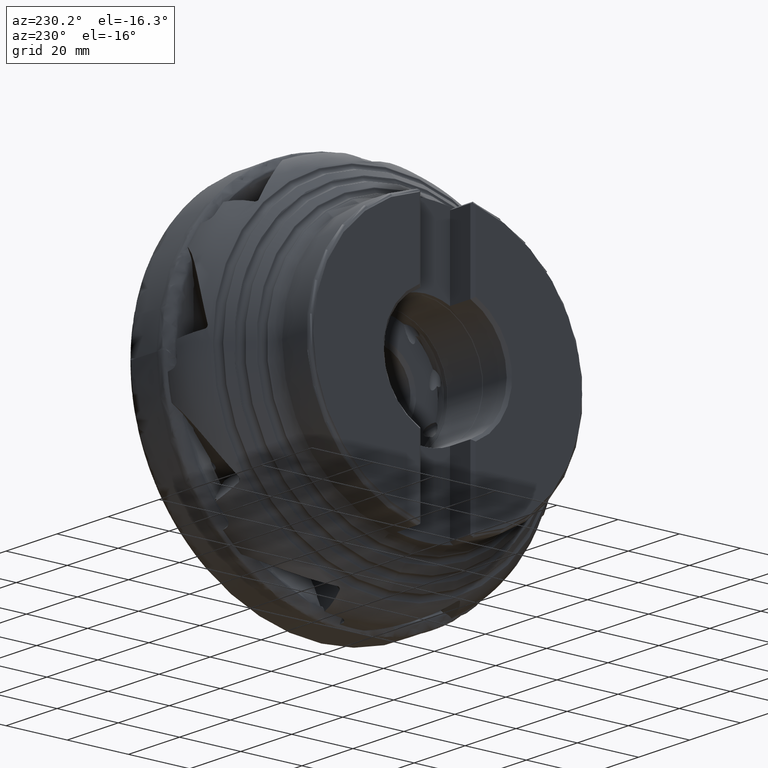
[diagram: clean part render]
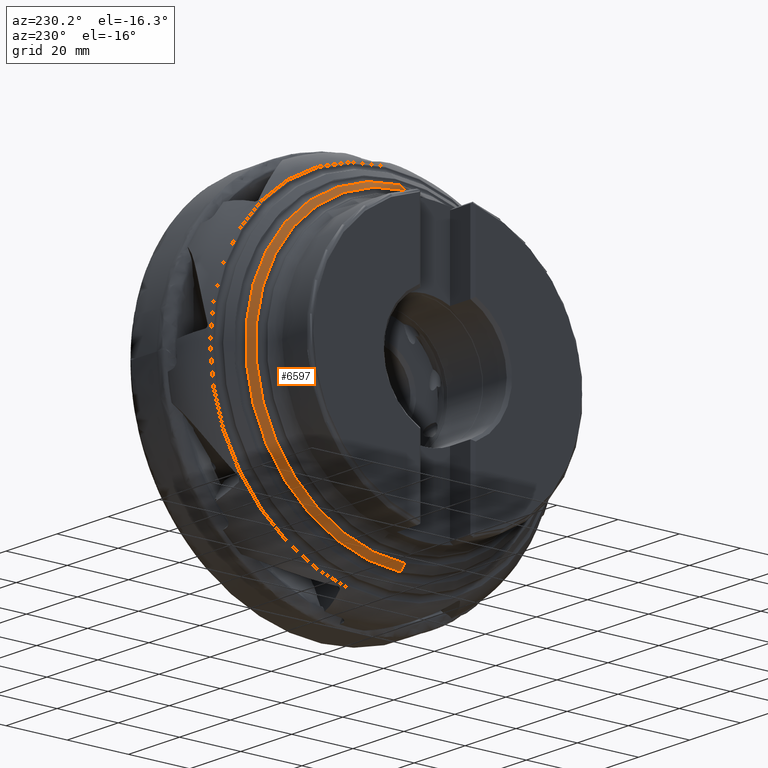
[diagram: same view with one face highlighted and labeled with its STEP entity id]
A machine part, auxiliary view. The second image highlights one B-rep face of the part: STEP entity #6597.
In plain terms, the highlighted conical surface has half-angle 45.572 deg.
Its self-contained STEP definition (entity closure, byte-faithful):
#467 = ORIENTED_EDGE ( 'NONE', *, *, #16617, .T. ) ;
#569 = DIRECTION ( 'NONE',  ( 0.0000000000000000000, 0.0000000000000000000, -1.000000000000000000 ) ) ;
#663 = CIRCLE ( 'NONE', #11733, 48.78325216826477400 ) ;
#832 = CARTESIAN_POINT ( 'NONE',  ( -24.39326998438824000, 0.0000000000000000000, -56.99335258278651400 ) ) ;
#1417 = VECTOR ( 'NONE', #23411, 1000.000000000000100 ) ;
#1704 = LINE ( 'NONE', #7423, #1417 ) ;
#2271 = ORIENTED_EDGE ( 'NONE', *, *, #4473, .T. ) ;
#2487 = LINE ( 'NONE', #832, #22473 ) ;
#4393 = DIRECTION ( 'NONE',  ( 0.0000000000000000000, 0.0000000000000000000, 1.000000000000000000 ) ) ;
#4473 = EDGE_CURVE ( 'NONE', #10352, #25487, #16135, .T. ) ;
#5679 = VERTEX_POINT ( 'NONE', #17478 ) ;
#6541 = CARTESIAN_POINT ( 'NONE',  ( -30.63793262459679000, 0.0000000000000000000, -50.62281532894449800 ) ) ;
#6597 = ADVANCED_FACE ( 'NONE', ( #15757 ), #17004, .T. ) ;
#7423 = CARTESIAN_POINT ( 'NONE',  ( -24.39326998438824000, 6.979672681318604300E-015, 56.99335258278651400 ) ) ;
#8025 = AXIS2_PLACEMENT_3D ( 'NONE', #16377, #16723, #4393 ) ;
#8233 = VERTEX_POINT ( 'NONE', #19682 ) ;
#8845 = CARTESIAN_POINT ( 'NONE',  ( -24.39326998438824000, 0.0000000000000000000, 0.0000000000000000000 ) ) ;
#10352 = VERTEX_POINT ( 'NONE', #13844 ) ;
#11261 = CARTESIAN_POINT ( 'NONE',  ( -32.44114809702379900, 0.0000000000000000000, 0.0000000000000000000 ) ) ;
#11733 = AXIS2_PLACEMENT_3D ( 'NONE', #11261, #20613, #14660 ) ;
#13030 = EDGE_LOOP ( 'NONE', ( #25133, #467, #2271, #22194 ) ) ;
#13844 = CARTESIAN_POINT ( 'NONE',  ( -30.63793262459679000, 6.199506875641945200E-015, 50.62281532894449800 ) ) ;
#14660 = DIRECTION ( 'NONE',  ( 0.0000000000000000000, 0.0000000000000000000, 1.000000000000000000 ) ) ;
#15757 = FACE_OUTER_BOUND ( 'NONE', #13030, .T. ) ;
#16135 = CIRCLE ( 'NONE', #8025, 50.62281532894449000 ) ;
#16377 = CARTESIAN_POINT ( 'NONE',  ( -30.63793262459679000, 0.0000000000000000000, 0.0000000000000000000 ) ) ;
#16617 = EDGE_CURVE ( 'NONE', #8233, #10352, #1704, .T. ) ;
#16723 = DIRECTION ( 'NONE',  ( -1.000000000000000000, -0.0000000000000000000, -0.0000000000000000000 ) ) ;
#17004 = CONICAL_SURFACE ( 'NONE', #19168, 56.99335258278651400, 0.7953758440962137600 ) ;
#17478 = CARTESIAN_POINT ( 'NONE',  ( -32.44114809702379900, 0.0000000000000000000, -48.78325216826477400 ) ) ;
#19168 = AXIS2_PLACEMENT_3D ( 'NONE', #8845, #24746, #569 ) ;
#19682 = CARTESIAN_POINT ( 'NONE',  ( -32.44114809702379900, 6.086866118814153700E-015, 48.78325216826477400 ) ) ;
#20590 = EDGE_CURVE ( 'NONE', #5679, #8233, #663, .T. ) ;
#20613 = DIRECTION ( 'NONE',  ( 1.000000000000000000, 0.0000000000000000000, 0.0000000000000000000 ) ) ;
#21239 = EDGE_CURVE ( 'NONE', #5679, #25487, #2487, .T. ) ;
#22194 = ORIENTED_EDGE ( 'NONE', *, *, #21239, .F. ) ;
#22473 = VECTOR ( 'NONE', #22654, 1000.000000000000100 ) ;
#22654 = DIRECTION ( 'NONE',  ( 0.7000164151652528100, 0.0000000000000000000, -0.7141267524040732000 ) ) ;
#23411 = DIRECTION ( 'NONE',  ( 0.7000164151652528100, 8.745530415171429200E-017, 0.7141267524040732000 ) ) ;
#24746 = DIRECTION ( 'NONE',  ( 1.000000000000000000, -0.0000000000000000000, -0.0000000000000000000 ) ) ;
#25133 = ORIENTED_EDGE ( 'NONE', *, *, #20590, .T. ) ;
#25487 = VERTEX_POINT ( 'NONE', #6541 ) ;